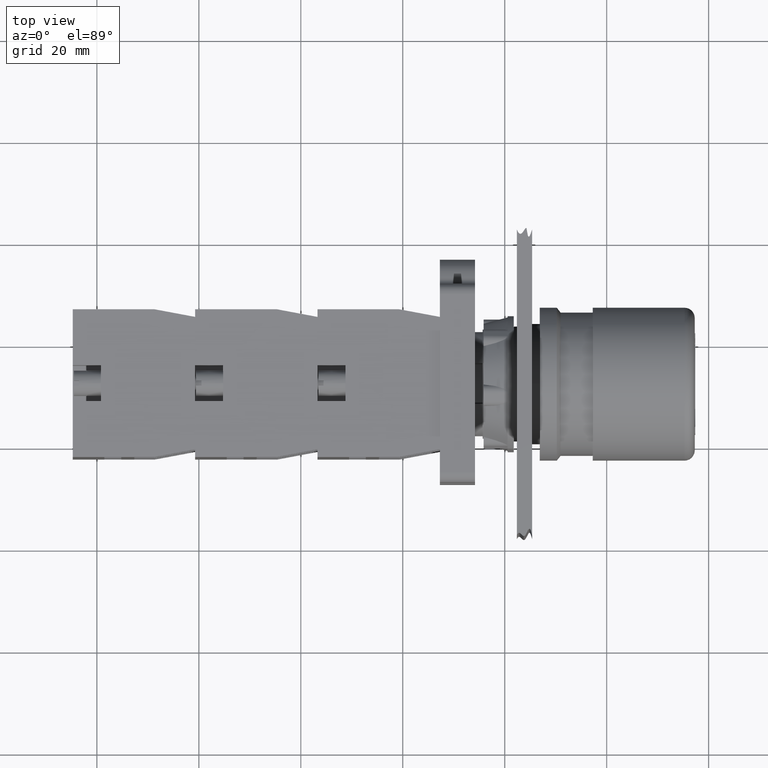
[diagram: clean part render]
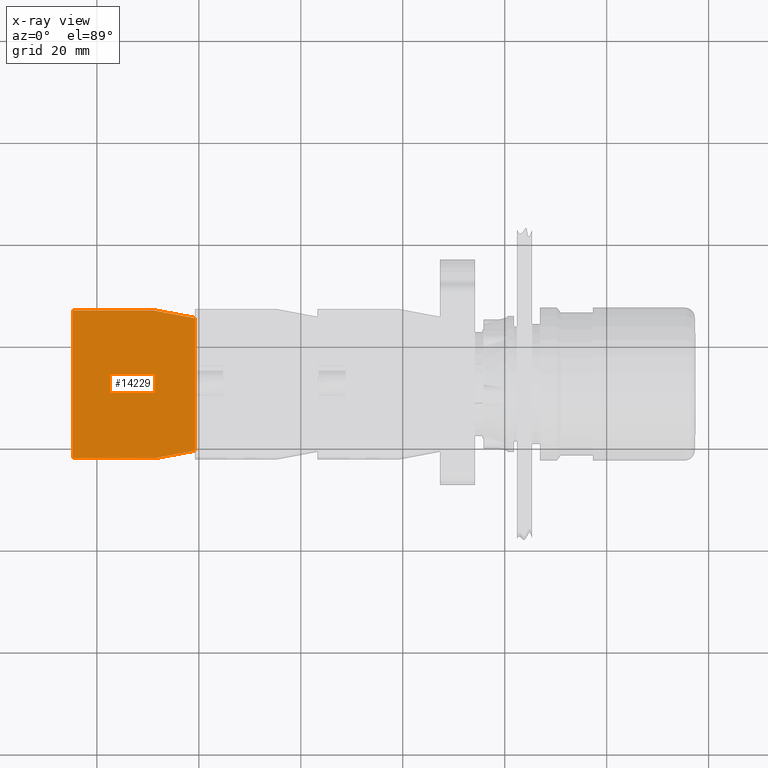
[diagram: x-ray — body ghosted, one internal face saturated and labeled with its STEP entity id]
A machine part, top view, then the same camera in x-ray: the body is ghosted and one INTERNAL B-rep face — a face not visible from any outside direction — is saturated and labeled: STEP entity #14229.
In plain terms, the highlighted planar face has unit normal (-0, 0, -1).
Its self-contained STEP definition (entity closure, byte-faithful):
#12534=CARTESIAN_POINT('',(-44.936741828918471,23.797073323279623,0.0));
#12535=VERTEX_POINT('',#12534);
#12542=CARTESIAN_POINT('',(-44.936741828918457,7.797073323279626,0.0));
#12543=VERTEX_POINT('',#12542);
#12544=CARTESIAN_POINT('',(-44.936741828918457,7.797073323279626,0.0));
#12545=DIRECTION('',(0.0,1.0,0.0));
#12546=VECTOR('',#12545,15.999999999999996);
#12547=LINE('',#12544,#12546);
#12548=EDGE_CURVE('',#12543,#12535,#12547,.T.);
#12725=CARTESIAN_POINT('',(-43.436741828918457,-0.202926676720380,0.0));
#12726=VERTEX_POINT('',#12725);
#12733=CARTESIAN_POINT('',(-17.436741828918457,-0.202926676720377,0.0));
#12734=VERTEX_POINT('',#12733);
#12735=CARTESIAN_POINT('',(-17.436741828918457,-0.202926676720377,0.0));
#12736=DIRECTION('',(-1.0,0.0,0.0));
#12737=VECTOR('',#12736,26.0);
#12738=LINE('',#12735,#12737);
#12739=EDGE_CURVE('',#12734,#12726,#12738,.T.);
#14083=CARTESIAN_POINT('',(-15.936741828918466,23.797073323279626,0.0));
#14084=VERTEX_POINT('',#14083);
#14091=CARTESIAN_POINT('',(-44.936741828918471,23.797073323279623,0.0));
#14092=DIRECTION('',(1.0,0.0,0.0));
#14093=VECTOR('',#14092,29.000000000000007);
#14094=LINE('',#14091,#14093);
#14095=EDGE_CURVE('',#12535,#14084,#14094,.T.);
#14131=CARTESIAN_POINT('',(-15.936741828918466,7.797073323279626,0.0));
#14132=VERTEX_POINT('',#14131);
#14139=CARTESIAN_POINT('',(-15.936741828918466,23.797073323279626,0.0));
#14140=DIRECTION('',(0.0,-1.0,0.0));
#14141=VECTOR('',#14140,16.0);
#14142=LINE('',#14139,#14141);
#14143=EDGE_CURVE('',#14084,#14132,#14142,.T.);
#14171=CARTESIAN_POINT('',(-15.936741828918466,7.797073323279626,0.0));
#14172=DIRECTION('',(-0.184288535050184,-0.982872186934322,0.0));
#14173=VECTOR('',#14172,8.139410298049855);
#14174=LINE('',#14171,#14173);
#14175=EDGE_CURVE('',#14132,#12734,#14174,.T.);
#14188=CARTESIAN_POINT('',(-43.436741828918457,-0.202926676720380,0.0));
#14189=DIRECTION('',(-0.184288535050185,0.982872186934322,0.0));
#14190=VECTOR('',#14189,8.139410298049860);
#14191=LINE('',#14188,#14190);
#14192=EDGE_CURVE('',#12726,#12543,#14191,.T.);
#14216=CARTESIAN_POINT('',(-30.436741828918464,12.124046801833057,0.0));
#14217=DIRECTION('',(0.0,0.0,1.0));
#14218=DIRECTION('',(1.0,0.0,0.0));
#14219=AXIS2_PLACEMENT_3D('',#14216,#14217,#14218);
#14220=PLANE('',#14219);
#14221=ORIENTED_EDGE('',*,*,#14095,.T.);
#14222=ORIENTED_EDGE('',*,*,#14143,.T.);
#14223=ORIENTED_EDGE('',*,*,#14175,.T.);
#14224=ORIENTED_EDGE('',*,*,#12739,.T.);
#14225=ORIENTED_EDGE('',*,*,#14192,.T.);
#14226=ORIENTED_EDGE('',*,*,#12548,.T.);
#14227=EDGE_LOOP('',(#14221,#14222,#14223,#14224,#14225,#14226));
#14228=FACE_OUTER_BOUND('',#14227,.T.);
#14229=ADVANCED_FACE('',(#14228),#14220,.F.);